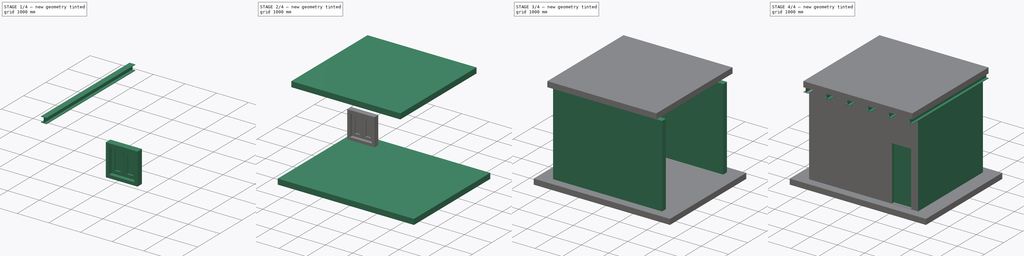
[diagram: build sequence overview — one tinted view per stage of 4, left to right]
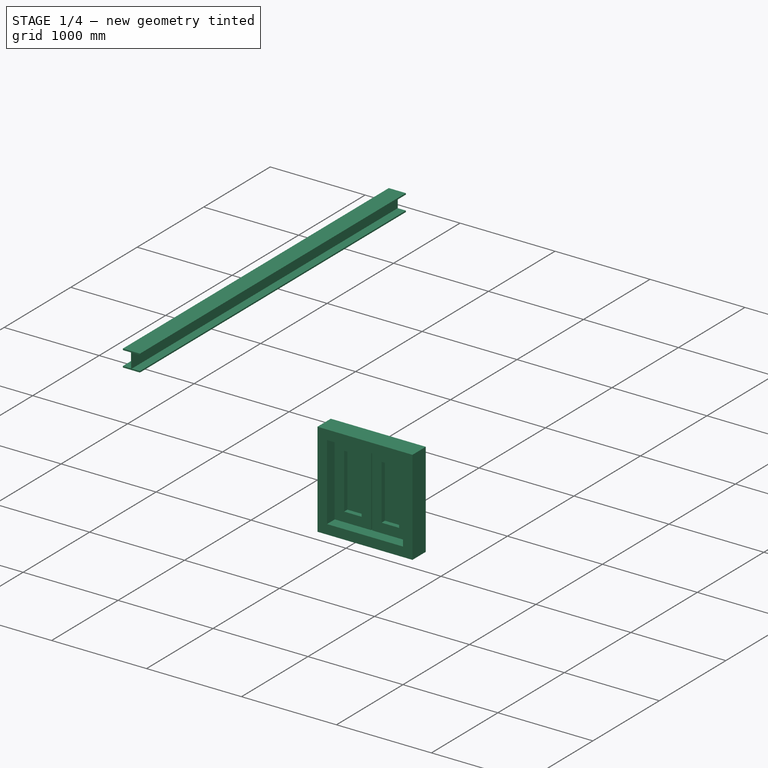
[diagram: stage 1 of 4 — iso view after this stage's code; geometry added in this stage tinted green]
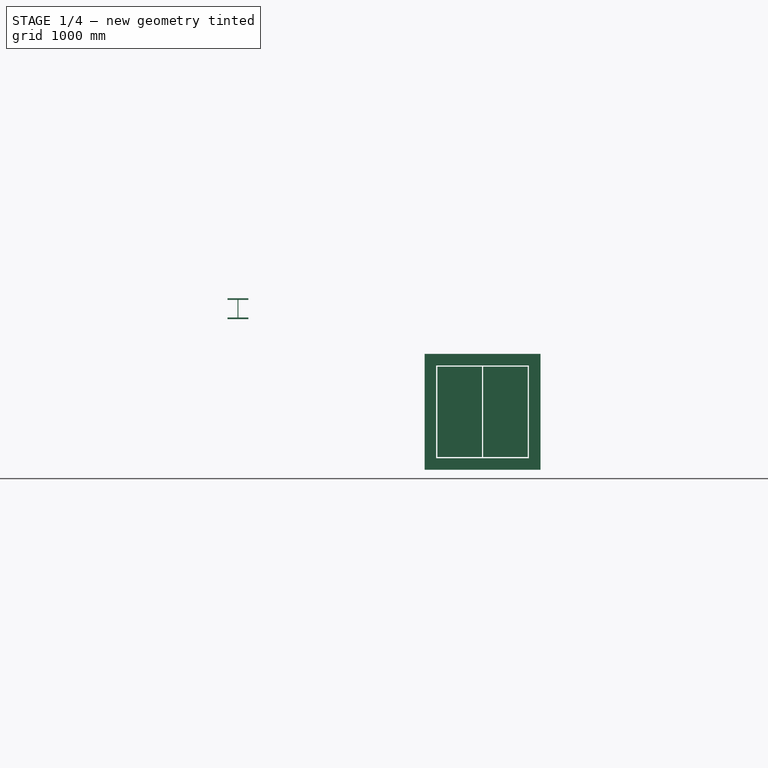
[diagram: stage 1 of 4 — front view after this stage's code; geometry added in this stage tinted green]
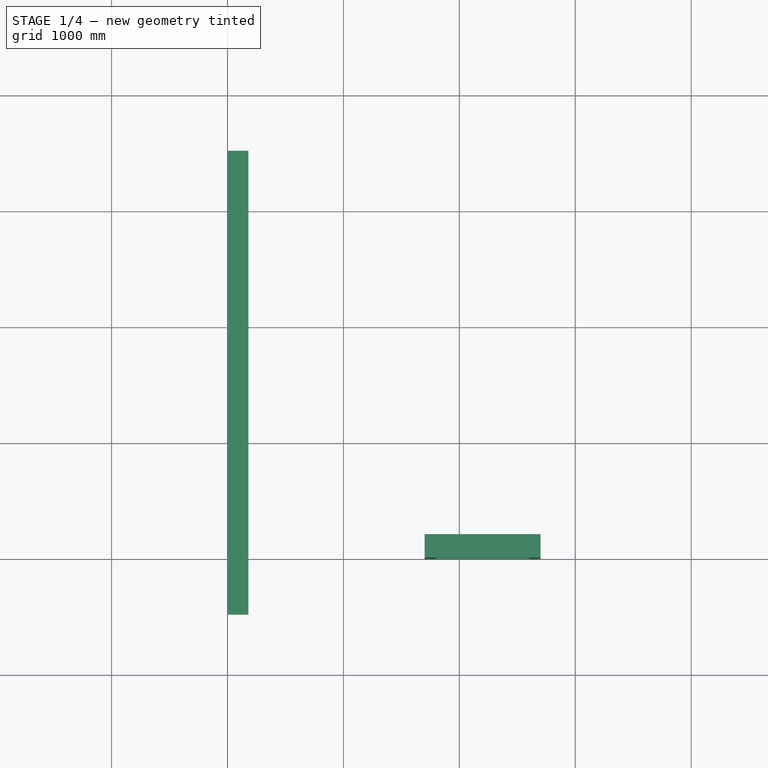
[diagram: stage 1 of 4 — top view after this stage's code; geometry added in this stage tinted green]
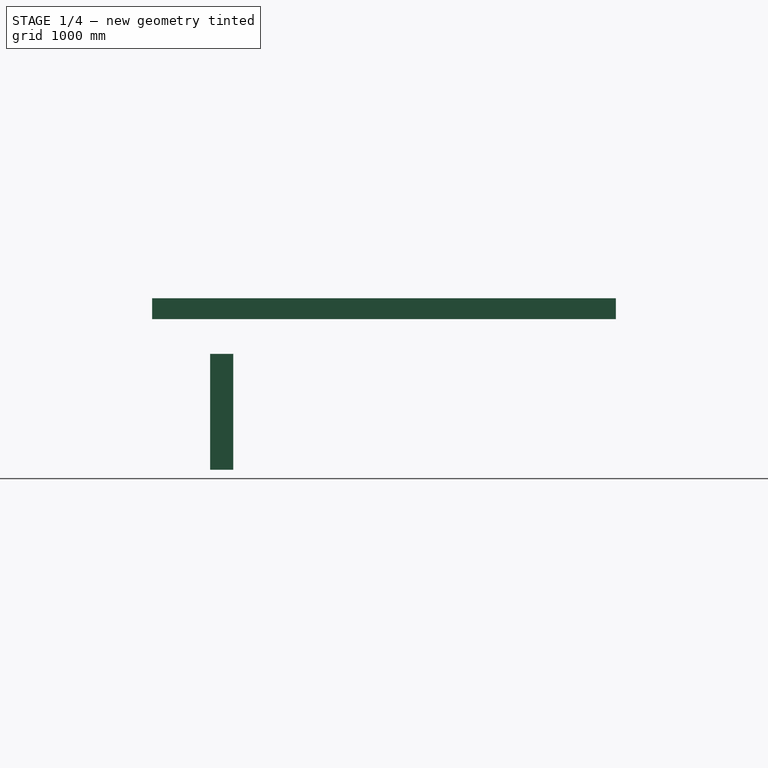
[diagram: stage 1 of 4 — right view after this stage's code; geometry added in this stage tinted green]
FCSTD DOCUMENT  (FreeCAD 0.20R29177 (Git))
Label: building plane
License: All rights reserved
LicenseURL: http://en.wikipedia.org/wiki/All_rights_reserved
objects: Part::FeaturePython×11, Part::Part2DObjectPython×7, Sketcher::SketchObject×5, Part::MultiFuse×1, App::Part×1
note: 24 computed .brp shape members not serialized (recipe doc carries the construction recipe); baked Part::Feature solids carry a one-line shape summary decoded from their .brp

FEATURE [Part::Part2DObjectPython] HEB180  # Draft 2D object (typed FeaturePython)
  FlangeThickness = 14
  Height = 180
  WebThickness = 8.5
  Width = 180
FEATURE [Part::FeaturePython] Structure001  # Arch/BIM 24 (typed FeaturePython)
  Base = -> HEB180
  BaseMirror = false
  BaseOffsetX = 0
  BaseOffsetY = 0
  BasePerpendicularToTool = false
  BaseRotation = 0
  ComputedLength = 0
  FaceMaker = 0
  Height = 4000
  HorizontalArea = 1406000
  IfcType = 24
  Length = 0
  MoveBase = false
  MoveWithHost = false
  Nodes = (2) [(0,6.82265e-16,0),(0,6.82265e-16,4000)]
  NodesOffset = 0
  Normal = (0,0,0)
  PerimeterLength = 1063
  Placement = pos=(90,3500,3090) rot=(1,0,0;1.5708rad)
  PredefinedType = 0
  Profile = HEB180
  ToolOffsetFirst = 0
  ToolOffsetLast = 0
  VerticalArea = 1452664
  Width = 100
FEATURE [Sketcher::SketchObject] Sketch002
  FullyConstrained = true
  Placement = pos=(1000,1000,0) rot=(1,0,0;1.5708rad)
  sketch-geometry (24):
    g0: LineSegment StartX=0 StartY=0 StartZ=0 EndX=998 EndY=0 EndZ=0
    g1: LineSegment StartX=998 StartY=0 StartZ=0 EndX=998 EndY=1000 EndZ=0
    g2: LineSegment StartX=998 StartY=1000 StartZ=0 EndX=0 EndY=1000 EndZ=0
    g3: LineSegment StartX=0 StartY=1000 StartZ=0 EndX=0 EndY=0 EndZ=0
    g4: LineSegment StartX=97 StartY=97 StartZ=0 EndX=901 EndY=97 EndZ=0
    g5: LineSegment StartX=901 StartY=97 StartZ=0 EndX=901 EndY=903 EndZ=0
    g6: LineSegment StartX=901 StartY=903 StartZ=0 EndX=97 EndY=903 EndZ=0
    g7: LineSegment StartX=97 StartY=903 StartZ=0 EndX=97 EndY=97 EndZ=0
    g8: LineSegment StartX=106.7 StartY=106.7 StartZ=0 EndX=494.15 EndY=106.7 EndZ=0
    g9: LineSegment StartX=494.15 StartY=106.7 StartZ=0 EndX=494.15 EndY=893.3 EndZ=0
    g10: LineSegment StartX=494.15 StartY=893.3 StartZ=0 EndX=106.7 EndY=893.3 EndZ=0
    g11: LineSegment StartX=106.7 StartY=893.3 StartZ=0 EndX=106.7 EndY=106.7 EndZ=0
    g12: LineSegment StartX=206.7 StartY=206.7 StartZ=0 EndX=394.15 EndY=206.7 EndZ=0
    g13: LineSegment StartX=394.15 StartY=206.7 StartZ=0 EndX=394.15 EndY=793.3 EndZ=0
    g14: LineSegment StartX=394.15 StartY=793.3 StartZ=0 EndX=206.7 EndY=793.3 EndZ=0
    g15: LineSegment StartX=206.7 StartY=793.3 StartZ=0 EndX=206.7 EndY=206.7 EndZ=0
    g16: LineSegment StartX=503.85 StartY=106.7 StartZ=0 EndX=891.3 EndY=106.7 EndZ=0
    g17: LineSegment StartX=891.3 StartY=106.7 StartZ=0 EndX=891.3 EndY=893.3 EndZ=0
    g18: LineSegment StartX=891.3 StartY=893.3 StartZ=0 EndX=503.85 EndY=893.3 EndZ=0
    g19: LineSegment StartX=503.85 StartY=893.3 StartZ=0 EndX=503.85 EndY=106.7 EndZ=0
    g20: LineSegment StartX=603.85 StartY=206.7 StartZ=0 EndX=791.3 EndY=206.7 EndZ=0
    g21: LineSegment StartX=791.3 StartY=206.7 StartZ=0 EndX=791.3 EndY=793.3 EndZ=0
    g22: LineSegment StartX=791.3 StartY=793.3 StartZ=0 EndX=603.85 EndY=793.3 EndZ=0
    g23: LineSegment StartX=603.85 StartY=793.3 StartZ=0 EndX=603.85 EndY=206.7 EndZ=0
  constraints (71):
    c: Coincident(g0,g1)
    c: Coincident(g1,g2)
    c: Coincident(g2,g3)
    c: Coincident(g3,g0)
    c: Horizontal(g0)
    c: Horizontal(g2)
    c: Vertical(g1)
    c: Vertical(g3)
    c: Coincident(g4,g5)
    c: Coincident(g5,g6)
    c: Coincident(g6,g7)
    c: Coincident(g7,g4)
    c: Horizontal(g4)
    c: Horizontal(g6)
    c: Vertical(g5)
    c: Vertical(g7)
    c: DistanceY(g1) = 1000  'Height'
    c: DistanceX(g0) = 998  'Width'
    c: DistanceY(g6,g2) = 97  'Frame1'
    c: DistanceX(g2,g6) = 97  'Frame2'
    c: DistanceX(g4,g0) = 97  'Frame3'
    c: DistanceY(g0,g4) = 97  'Frame4'
    c: Coincident(g0,g-1)
    c: Coincident(g8,g9)
    c: Coincident(g9,g10)
    c: Coincident(g10,g11)
    c: Coincident(g11,g8)
    c: Horizontal(g8)
    c: Horizontal(g10)
    c: Vertical(g9)
    c: Vertical(g11)
    c: Coincident(g12,g13)
    c: Coincident(g13,g14)
    c: Coincident(g14,g15)
    c: Coincident(g15,g12)
    c: Horizontal(g12)
    c: Horizontal(g14)
    c: Vertical(g13)
    c: Vertical(g15)
    c: Coincident(g16,g17)
    c: Coincident(g17,g18)
    c: Coincident(g18,g19)
    c: Coincident(g19,g16)
    c: Horizontal(g16)
    c: Horizontal(g18)
    c: Vertical(g17)
    c: Vertical(g19)
    c: Coincident(g20,g21)
    c: Coincident(g21,g22)
    c: Coincident(g22,g23)
    c: Coincident(g23,g20)
    c: Horizontal(g20)
    c: Horizontal(g22)
    c: Vertical(g21)
    c: Vertical(g23)
    c: DistanceY(g8,g12) = 100
    c: DistanceX(g8,g12) = 100
    c: DistanceX(g21,g17) = 100
    c: DistanceY(g21,g17) = 100
    c: DistanceX(g16,g20) = 100
    c: DistanceX(g14,g10) = 100
    c: Equal(g22,g14)
    c: DistanceY(g8,g16) = 0
    c: DistanceY(g10,g18) = 0
    c: DistanceX(g4,g8) = 9.7
    c: DistanceY(g4,g8) = 9.7
    c: DistanceX(g6,g18) = -9.7
    c: DistanceY(g6,g18) = -9.7
    c: DistanceX(g9,g19) = 9.7
    c: PointOnObject(g13,g22)
    c: PointOnObject(g20,g12)
FEATURE [Sketcher::SketchObject] Sketch003
  FullyConstrained = true
  Placement = pos=(1000,1000,0) rot=(1,0,0;1.5708rad)
  sketch-geometry (24):
    g0: LineSegment StartX=0 StartY=0 StartZ=0 EndX=1000 EndY=0 EndZ=0
    g1: LineSegment StartX=1000 StartY=0 StartZ=0 EndX=1000 EndY=1000 EndZ=0
    g2: LineSegment StartX=1000 StartY=1000 StartZ=0 EndX=0 EndY=1000 EndZ=0
    g3: LineSegment StartX=0 StartY=1000 StartZ=0 EndX=0 EndY=0 EndZ=0
    g4: LineSegment StartX=100 StartY=100 StartZ=0 EndX=900 EndY=100 EndZ=0
    g5: LineSegment StartX=900 StartY=100 StartZ=0 EndX=900 EndY=900 EndZ=0
    g6: LineSegment StartX=900 StartY=900 StartZ=0 EndX=100 EndY=900 EndZ=0
    g7: LineSegment StartX=100 StartY=900 StartZ=0 EndX=100 EndY=100 EndZ=0
    g8: LineSegment StartX=110 StartY=110 StartZ=0 EndX=495 EndY=110 EndZ=0
    g9: LineSegment StartX=495 StartY=110 StartZ=0 EndX=495 EndY=890 EndZ=0
    g10: LineSegment StartX=495 StartY=890 StartZ=0 EndX=110 EndY=890 EndZ=0
    g11: LineSegment StartX=110 StartY=890 StartZ=0 EndX=110 EndY=110 EndZ=0
    g12: LineSegment StartX=210 StartY=210 StartZ=0 EndX=395 EndY=210 EndZ=0
    g13: LineSegment StartX=395 StartY=210 StartZ=0 EndX=395 EndY=790 EndZ=0
    g14: LineSegment StartX=395 StartY=790 StartZ=0 EndX=210 EndY=790 EndZ=0
    g15: LineSegment StartX=210 StartY=790 StartZ=0 EndX=210 EndY=210 EndZ=0
    g16: LineSegment StartX=505 StartY=110 StartZ=0 EndX=890 EndY=110 EndZ=0
    g17: LineSegment StartX=890 StartY=110 StartZ=0 EndX=890 EndY=890 EndZ=0
    g18: LineSegment StartX=890 StartY=890 StartZ=0 EndX=505 EndY=890 EndZ=0
    g19: LineSegment StartX=505 StartY=890 StartZ=0 EndX=505 EndY=110 EndZ=0
    g20: LineSegment StartX=605 StartY=210 StartZ=0 EndX=790 EndY=210 EndZ=0
    g21: LineSegment StartX=790 StartY=210 StartZ=0 EndX=790 EndY=790 EndZ=0
    g22: LineSegment StartX=790 StartY=790 StartZ=0 EndX=605 EndY=790 EndZ=0
    g23: LineSegment StartX=605 StartY=790 StartZ=0 EndX=605 EndY=210 EndZ=0
  constraints (71):
    c: Coincident(g0,g1)
    c: Coincident(g1,g2)
    c: Coincident(g2,g3)
    c: Coincident(g3,g0)
    c: Horizontal(g0)
    c: Horizontal(g2)
    c: Vertical(g1)
    c: Vertical(g3)
    c: Coincident(g4,g5)
    c: Coincident(g5,g6)
    c: Coincident(g6,g7)
    c: Coincident(g7,g4)
    c: Horizontal(g4)
    c: Horizontal(g6)
    c: Vertical(g5)
    c: Vertical(g7)
    c: DistanceY(g1) = 1000  'Height'
    c: DistanceX(g0) = 1000  'Width'
    c: DistanceY(g6,g2) = 100  'Frame1'
    c: DistanceX(g2,g6) = 100  'Frame2'
    c: DistanceX(g4,g0) = 100  'Frame3'
    c: DistanceY(g0,g4) = 100  'Frame4'
    c: Coincident(g0,g-1)
    c: Coincident(g8,g9)
    c: Coincident(g9,g10)
    c: Coincident(g10,g11)
    c: Coincident(g11,g8)
    c: Horizontal(g8)
    c: Horizontal(g10)
    c: Vertical(g9)
    c: Vertical(g11)
    c: Coincident(g12,g13)
    c: Coincident(g13,g14)
    c: Coincident(g14,g15)
    c: Coincident(g15,g12)
    c: Horizontal(g12)
    c: Horizontal(g14)
    c: Vertical(g13)
    c: Vertical(g15)
    c: Coincident(g16,g17)
    c: Coincident(g17,g18)
    c: Coincident(g18,g19)
    c: Coincident(g19,g16)
    c: Horizontal(g16)
    c: Horizontal(g18)
    c: Vertical(g17)
    c: Vertical(g19)
    c: Coincident(g20,g21)
    c: Coincident(g21,g22)
    c: Coincident(g22,g23)
    c: Coincident(g23,g20)
    c: Horizontal(g20)
    c: Horizontal(g22)
    c: Vertical(g21)
    c: Vertical(g23)
    c: DistanceY(g8,g12) = 100  'Frame5'
    c: DistanceX(g8,g12) = 100  'Frame6'
    c: DistanceX(g21,g17) = 100  'Frame7'
    c: DistanceY(g21,g17) = 100  'Frame8'
    c: DistanceX(g16,g20) = 100  'Frame9'
    c: DistanceX(g14,g10) = 100  'Frame10'
    c: Equal(g22,g14)
    c: DistanceY(g8,g16) = 0
    c: DistanceY(g10,g18) = 0
    c: DistanceX(g4,g8) = 10
    c: DistanceY(g4,g8) = 10
    c: DistanceX(g6,g18) = -10
    c: DistanceY(g6,g18) = -10
    c: DistanceX(g9,g19) = 10
    c: PointOnObject(g13,g22)
    c: PointOnObject(g20,g12)
FEATURE [Sketcher::SketchObject] Sketch004
  FullyConstrained = true
  Placement = pos=(1100,0,600) rot=(1,0,0;1.5708rad)
  sketch-geometry (24):
    g0: LineSegment StartX=0 StartY=0 StartZ=0 EndX=1000 EndY=0 EndZ=0
    g1: LineSegment StartX=1000 StartY=0 StartZ=0 EndX=1000 EndY=1000 EndZ=0
    g2: LineSegment StartX=1000 StartY=1000 StartZ=0 EndX=0 EndY=1000 EndZ=0
    g3: LineSegment StartX=0 StartY=1000 StartZ=0 EndX=0 EndY=0 EndZ=0
    g4: LineSegment StartX=100 StartY=100 StartZ=0 EndX=900 EndY=100 EndZ=0
    g5: LineSegment StartX=900 StartY=100 StartZ=0 EndX=900 EndY=900 EndZ=0
    g6: LineSegment StartX=900 StartY=900 StartZ=0 EndX=100 EndY=900 EndZ=0
    g7: LineSegment StartX=100 StartY=900 StartZ=0 EndX=100 EndY=100 EndZ=0
    g8: LineSegment StartX=110 StartY=110 StartZ=0 EndX=495 EndY=110 EndZ=0
    g9: LineSegment StartX=495 StartY=110 StartZ=0 EndX=495 EndY=890 EndZ=0
    g10: LineSegment StartX=495 StartY=890 StartZ=0 EndX=110 EndY=890 EndZ=0
    g11: LineSegment StartX=110 StartY=890 StartZ=0 EndX=110 EndY=110 EndZ=0
    g12: LineSegment StartX=210 StartY=210 StartZ=0 EndX=395 EndY=210 EndZ=0
    g13: LineSegment StartX=395 StartY=210 StartZ=0 EndX=395 EndY=790 EndZ=0
    g14: LineSegment StartX=395 StartY=790 StartZ=0 EndX=210 EndY=790 EndZ=0
    g15: LineSegment StartX=210 StartY=790 StartZ=0 EndX=210 EndY=210 EndZ=0
    g16: LineSegment StartX=505 StartY=110 StartZ=0 EndX=890 EndY=110 EndZ=0
    g17: LineSegment StartX=890 StartY=110 StartZ=0 EndX=890 EndY=890 EndZ=0
    g18: LineSegment StartX=890 StartY=890 StartZ=0 EndX=505 EndY=890 EndZ=0
    g19: LineSegment StartX=505 StartY=890 StartZ=0 EndX=505 EndY=110 EndZ=0
    g20: LineSegment StartX=605 StartY=210 StartZ=0 EndX=790 EndY=210 EndZ=0
    g21: LineSegment StartX=790 StartY=210 StartZ=0 EndX=790 EndY=790 EndZ=0
    g22: LineSegment StartX=790 StartY=790 StartZ=0 EndX=605 EndY=790 EndZ=0
    g23: LineSegment StartX=605 StartY=790 StartZ=0 EndX=605 EndY=210 EndZ=0
  constraints (71):
    c: Coincident(g0,g1)
    c: Coincident(g1,g2)
    c: Coincident(g2,g3)
    c: Coincident(g3,g0)
    c: Horizontal(g0)
    c: Horizontal(g2)
    c: Vertical(g1)
    c: Vertical(g3)
    c: Coincident(g4,g5)
    c: Coincident(g5,g6)
    c: Coincident(g6,g7)
    c: Coincident(g7,g4)
    c: Horizontal(g4)
    c: Horizontal(g6)
    c: Vertical(g5)
    c: Vertical(g7)
    c: DistanceY(g1) = 1000  'Height'
    c: DistanceX(g0) = 1000  'Width'
    c: DistanceY(g6,g2) = 100  'Frame1'
    c: DistanceX(g2,g6) = 100  'Frame2'
    c: DistanceX(g4,g0) = 100  'Frame3'
    c: DistanceY(g0,g4) = 100  'Frame4'
    c: Coincident(g0,g-1)
    c: Coincident(g8,g9)
    c: Coincident(g9,g10)
    c: Coincident(g10,g11)
    c: Coincident(g11,g8)
    c: Horizontal(g8)
    c: Horizontal(g10)
    c: Vertical(g9)
    c: Vertical(g11)
    c: Coincident(g12,g13)
    c: Coincident(g13,g14)
    c: Coincident(g14,g15)
    c: Coincident(g15,g12)
    c: Horizontal(g12)
    c: Horizontal(g14)
    c: Vertical(g13)
    c: Vertical(g15)
    c: Coincident(g16,g17)
    c: Coincident(g17,g18)
    c: Coincident(g18,g19)
    c: Coincident(g19,g16)
    c: Horizontal(g16)
    c: Horizontal(g18)
    c: Vertical(g17)
    c: Vertical(g19)
    c: Coincident(g20,g21)
    c: Coincident(g21,g22)
    c: Coincident(g22,g23)
    c: Coincident(g23,g20)
    c: Horizontal(g20)
    c: Horizontal(g22)
    c: Vertical(g21)
    c: Vertical(g23)
    c: DistanceY(g8,g12) = 100  'Frame5'
    c: DistanceX(g8,g12) = 100  'Frame6'
    c: DistanceX(g21,g17) = 100  'Frame7'
    c: DistanceY(g21,g17) = 100  'Frame8'
    c: DistanceX(g16,g20) = 100  'Frame9'
    c: DistanceX(g14,g10) = 100  'Frame10'
    c: Equal(g22,g14)
    c: DistanceY(g8,g16) = 0
    c: DistanceY(g10,g18) = 0
    c: DistanceX(g4,g8) = 10
    c: DistanceY(g4,g8) = 10
    c: DistanceX(g6,g18) = -10
    c: DistanceY(g6,g18) = -10
    c: DistanceX(g9,g19) = 10
    c: PointOnObject(g13,g22)
    c: PointOnObject(g20,g12)
FEATURE [Part::FeaturePython] Window001  label="Window"  # Arch/BIM 170 (typed FeaturePython)
  Area = 1000000
  Base = -> Sketch004
  Frame = 100
  Height = 1000
  HoleDepth = 0
  HoleWire = 0
  HorizontalArea = 0
  IfcData = attributes={"GlobalId": {"name": "GlobalId", "type": "IfcGloballyUniqueId", "is_enum": false, "enum_values": []}, "Description": {"... (+1231 chars omitted),+1 more (map truncated)
  IfcType = 170
  LouvreSpacing = 0
  LouvreWidth = 0
  MoveBase = false
  MoveWithHost = true
  Normal = (0,1,-2e-16)
  Opening = 0
  OverallHeight = 1000
  OverallWidth = 1000
  PartitioningType = 0
  PerimeterLength = 0
  Placement = pos=(600,0,1100) rot=(0,0,1;0rad)
  PredefinedType = 0
  Preset = 3
  SymbolElevation = false
  SymbolPlan = false
  VerticalArea = 0
  Width = 1000
  WindowParts = OuterFrame | Frame | Wire0,Wire1 | 100.0+V | 0.00+V | LeftFrame | Frame | Wire2,Wire3,Edge8,Mode1 | 100.0 | 100.0+V | LeftGlass | Glass panel | Wire3 | 10.0 | 150.0+V | RightFrame | Frame | Wire4,Wire5,Edge6,Mode2 | 100.0 | 100.0+V | RightGlass | Glass panel | Wire5 | 10.0 | 150.0+V
  expr: OverallHeight = .Height.Value
  expr: OverallWidth = .Width.Value
FEATURE [Part::FeaturePython] Window002  # Arch/BIM 170 (typed FeaturePython)
  Area = 1000000
  CloneOf = -> Window001
  Frame = 0
  Height = 1000
  HoleDepth = 0
  HoleWire = 0
  HorizontalArea = 0
  IfcData = attributes={"GlobalId": {"name": "GlobalId", "type": "IfcGloballyUniqueId", "is_enum": false, "enum_values": []}, "Description": {"... (+1225 chars omitted),+1 more (map truncated)
  IfcType = 170
  LouvreSpacing = 0
  LouvreWidth = 0
  MoveBase = false
  MoveWithHost = true
  Normal = (0,0,0)
  Opening = 0
  OverallHeight = 0
  OverallWidth = 0
  PartitioningType = 0
  PerimeterLength = 0
  Placement = pos=(600,0,1100) rot=(0,0,1;0rad)
  PredefinedType = 0
  Preset = 0
  SymbolElevation = false
  SymbolPlan = false
  VerticalArea = 0
  Width = 1000
  expr: OverallHeight = .Height.Value
  expr: OverallWidth = .Width.Value
FEATURE [App::Part] Part
  Origin = -> Origin
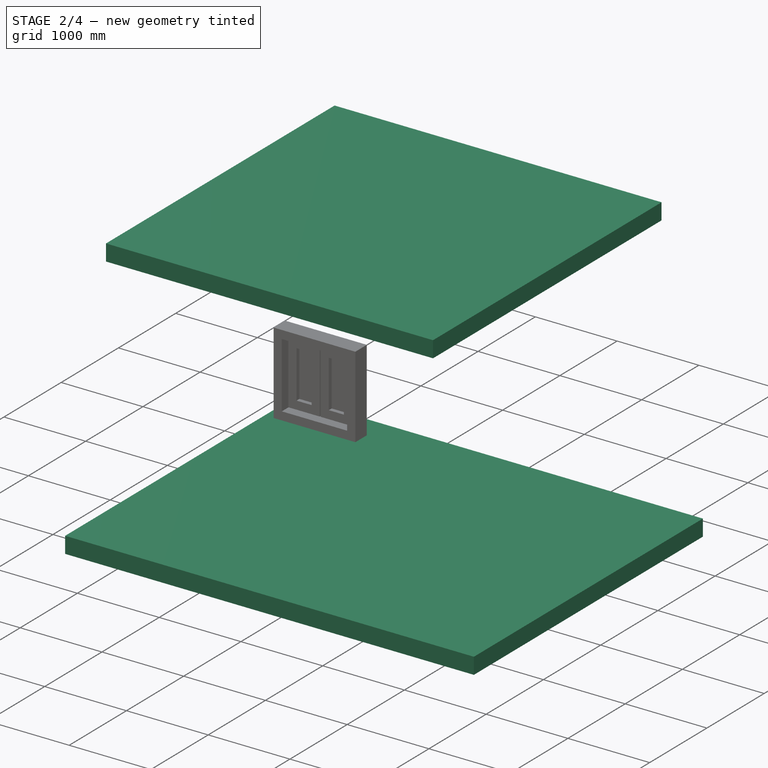
[diagram: stage 2 of 4 — iso view after this stage's code; geometry added in this stage tinted green]
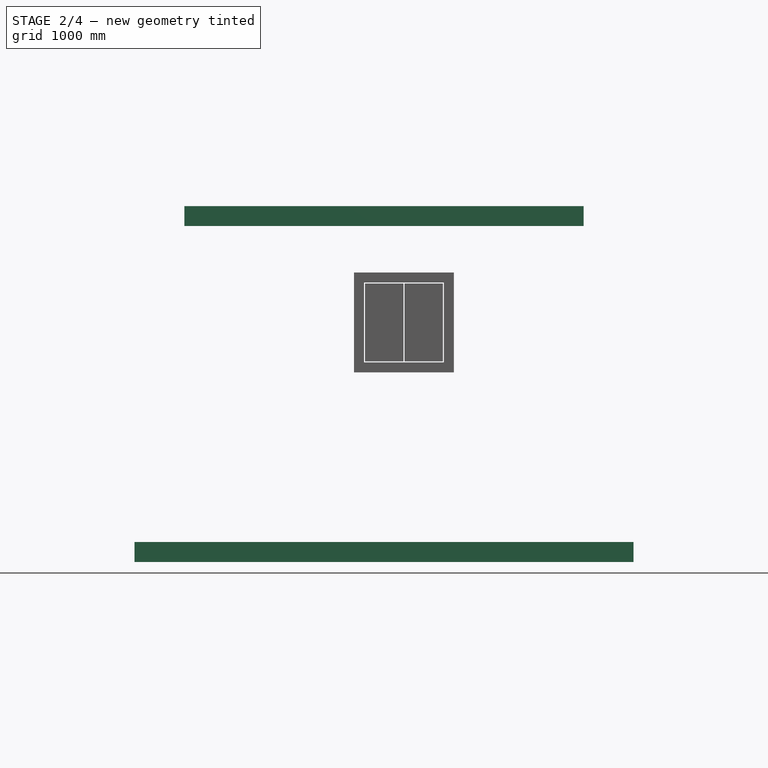
[diagram: stage 2 of 4 — front view after this stage's code; geometry added in this stage tinted green]
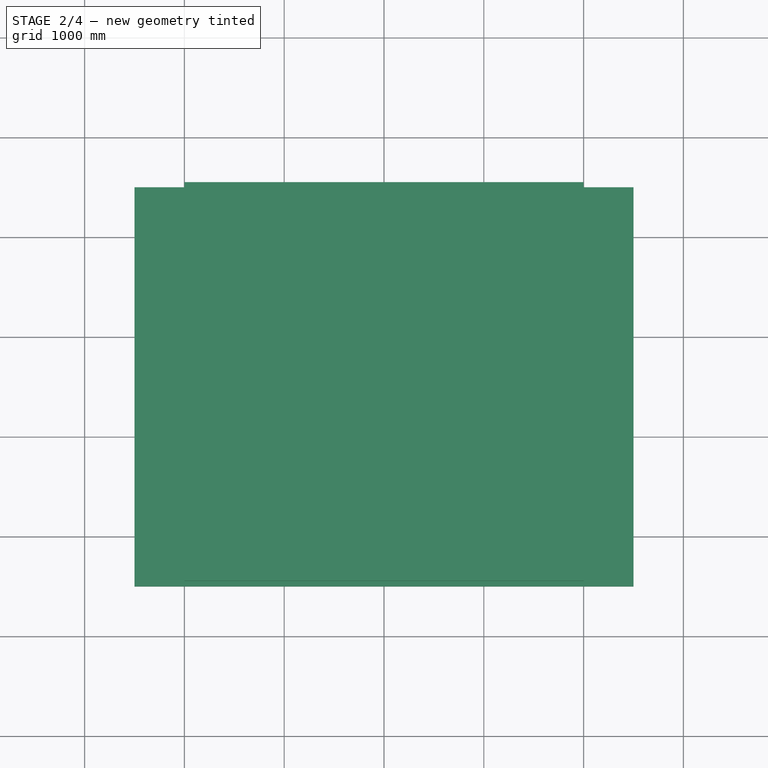
[diagram: stage 2 of 4 — top view after this stage's code; geometry added in this stage tinted green]
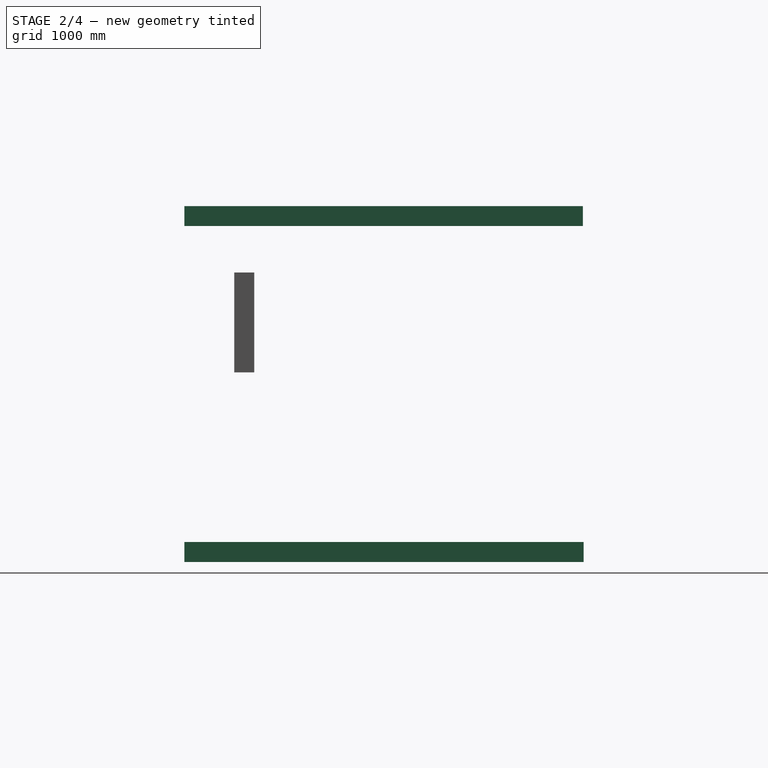
[diagram: stage 2 of 4 — right view after this stage's code; geometry added in this stage tinted green]
FEATURE [Part::Part2DObjectPython] Rectangle  # Draft 2D object (typed FeaturePython)
  ChamferSize = 0
  Columns = 1
  FilletRadius = 0
  Height = 4000
  Length = 5000
  MakeFace = true
  Placement = pos=(-500,-500,0) rot=(0,0,1;0rad)
  Rows = 1
FEATURE [Part::FeaturePython] Structure  # Arch/BIM 172 (typed FeaturePython)
  Base = -> Rectangle
  BaseMirror = false
  BaseOffsetX = 0
  BaseOffsetY = 0
  BasePerpendicularToTool = false
  BaseRotation = 0
  ComputedLength = 0
  FaceMaker = 0
  Height = 200
  HorizontalArea = 20000000
  IfcType = 172
  Length = 0
  MoveBase = false
  MoveWithHost = false
  Nodes = (2) [(2000,1500,0),(2000,1500,-200)]
  NodesOffset = 0
  Normal = (0,0,-1)
  PerimeterLength = 18000
  PredefinedType = 0
  ToolOffsetFirst = 0
  ToolOffsetLast = 0
  VerticalArea = 3600000
  Width = 100
FEATURE [Part::FeaturePython] Array  # Draft array (typed FeaturePython)
  Angle = 360
  ArrayType = 0
  Axis = (0,0,1)
  Base = -> Structure001
  Center = (0,0,0)
  Fuse = false
  IntervalAxis = (0,0,0)
  IntervalX = (764,0,0)
  IntervalY = (0,1,0)
  IntervalZ = (0,0,1)
  NumberPolar = 1
  NumberX = 6
  NumberY = 1
  NumberZ = 1
  expr: .IntervalX.x = (4000 - 180) / 5
FEATURE [Part::Part2DObjectPython] Rectangle001  # Draft 2D object (typed FeaturePython)
  ChamferSize = 0
  Columns = 1
  FilletRadius = 0
  Height = 3992.57
  Length = 4000
  MakeFace = true
  Placement = pos=(4000,3492.57,3166) rot=(0,0,1;3.14159rad)
  Rows = 1
  Support = -> [Array]
FEATURE [Part::FeaturePython] Structure002  # Arch/BIM 172 (typed FeaturePython)
  Base = -> Rectangle001
  BaseMirror = false
  BaseOffsetX = 0
  BaseOffsetY = 0
  BasePerpendicularToTool = false
  BaseRotation = 0
  ComputedLength = 0
  FaceMaker = 0
  Height = 200
  HorizontalArea = 1.59703e+07
  IfcType = 172
  Length = 0
  MoveBase = false
  MoveWithHost = false
  Nodes = (2) [(-2000,-1496.29,3166),(-2000,-1496.29,3366)]
  NodesOffset = 0
  Normal = (0,0,0)
  PerimeterLength = 15985.1
  PredefinedType = 0
  ToolOffsetFirst = 0
  ToolOffsetLast = 0
  VerticalArea = 3.19703e+06
  Width = 100
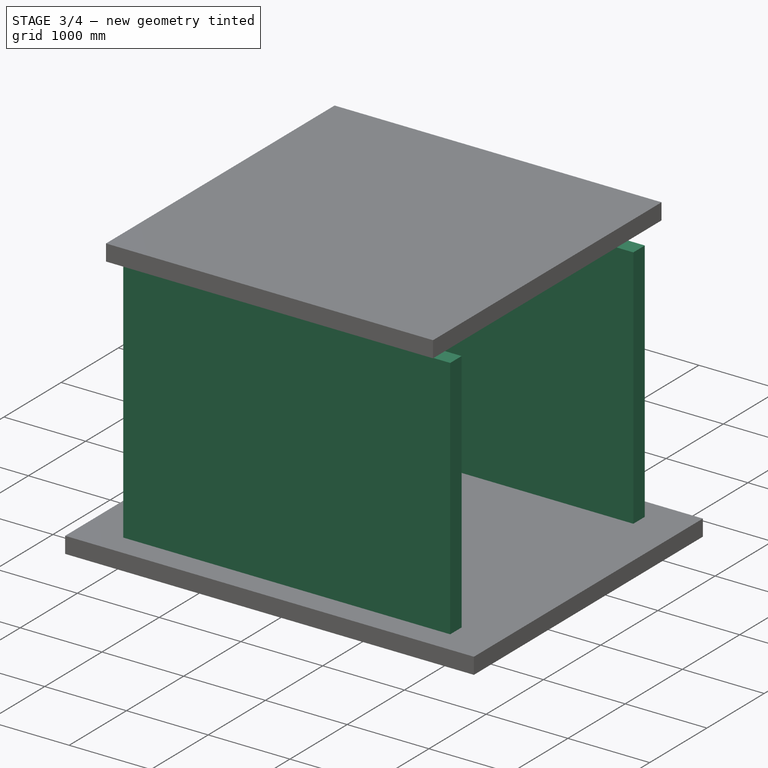
[diagram: stage 3 of 4 — iso view after this stage's code; geometry added in this stage tinted green]
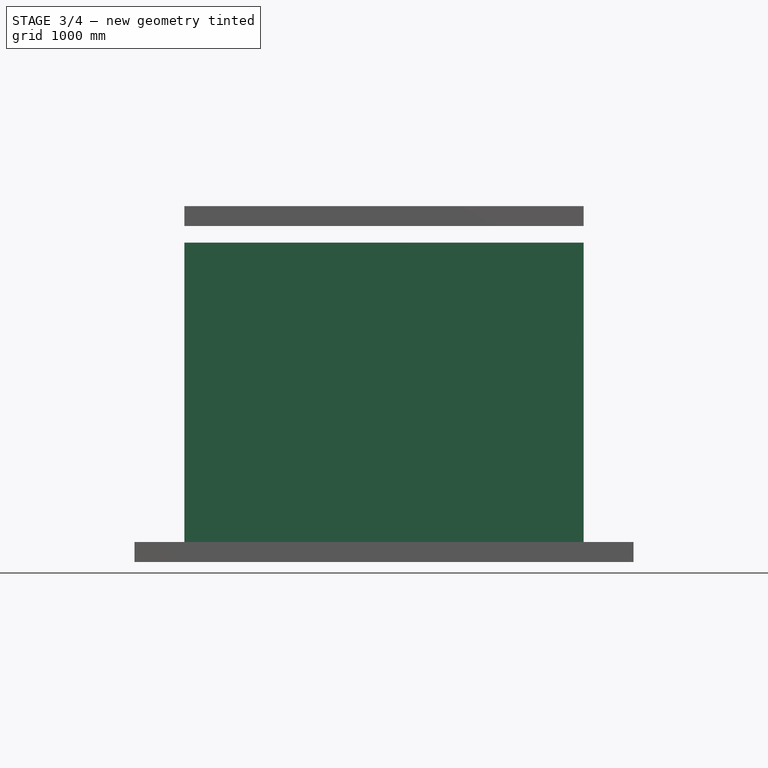
[diagram: stage 3 of 4 — front view after this stage's code; geometry added in this stage tinted green]
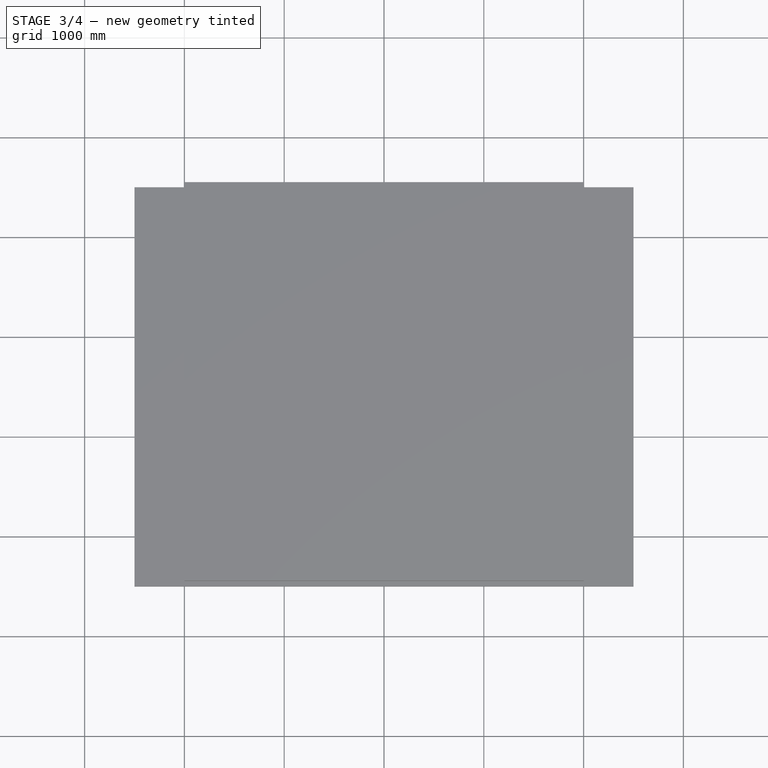
[diagram: stage 3 of 4 — top view after this stage's code; geometry added in this stage tinted green]
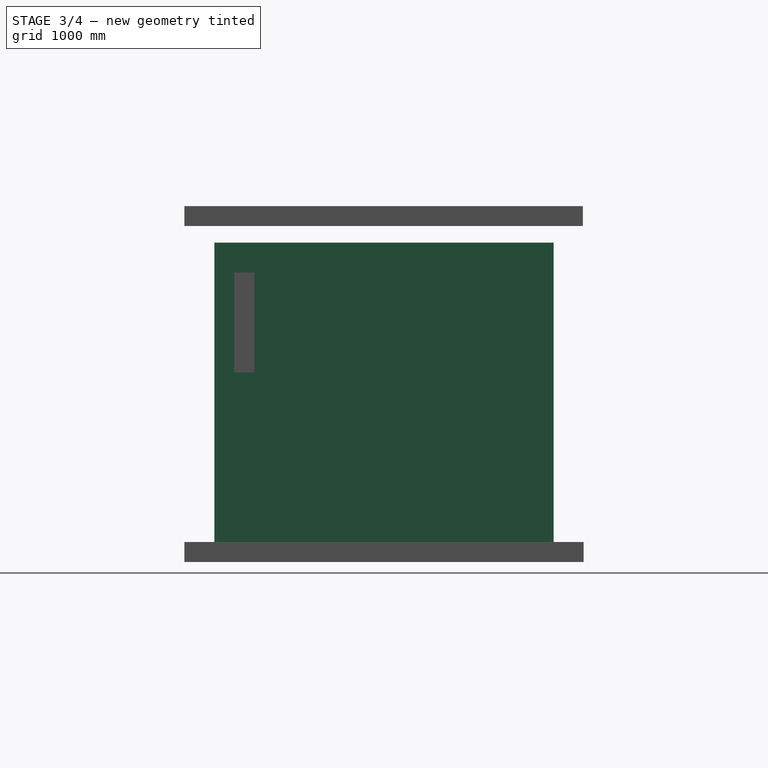
[diagram: stage 3 of 4 — right view after this stage's code; geometry added in this stage tinted green]
FEATURE [Part::Part2DObjectPython] Line  # Draft 2D object (typed FeaturePython)
  ChamferSize = 0
  Closed = false
  End = (0,3000,0)
  FilletRadius = 0
  Length = 3000
  MakeFace = true
  Points = (2) [(0,0,0),(0,3000,0)]
  Start = (0,0,0)
  Subdivisions = 0
FEATURE [Part::Part2DObjectPython] Line001  # Draft 2D object (typed FeaturePython)
  ChamferSize = 0
  Closed = false
  End = (4000,0,0)
  FilletRadius = 0
  Length = 4000
  MakeFace = true
  Points = (2) [(0,0,0),(4000,0,0)]
  Start = (0,0,0)
  Subdivisions = 0
FEATURE [Part::Part2DObjectPython] Line003  # Draft 2D object (typed FeaturePython)
  ChamferSize = 0
  Closed = false
  End = (0,3000,0)
  FilletRadius = 0
  Length = 4000
  MakeFace = true
  Placement = pos=(4000,3000,0) rot=(0,0,1;0rad)
  Points = (2) [(0,0,0),(-4000,0,0)]
  Start = (4000,3000,0)
  Subdivisions = 0
FEATURE [Part::Part2DObjectPython] Line004  # Draft 2D object (typed FeaturePython)
  ChamferSize = 0
  Closed = false
  End = (4000,0,0)
  FilletRadius = 0
  Length = 3000
  MakeFace = true
  Placement = pos=(4000,3000,0) rot=(0,0,1;0rad)
  Points = (2) [(0,0,0),(0,-3000,0)]
  Start = (4000,3000,0)
  Subdivisions = 0
FEATURE [Part::FeaturePython] Wall  # Arch/BIM 166 (typed FeaturePython)
  Align = 0
  Area = 0
  Base = -> Line
  BlockHeight = 0
  BlockLength = 0
  CountBroken = 0
  CountEntire = 0
  Face = 0
  Height = 3000
  HorizontalArea = 600000
  IfcType = 166
  Joint = 0
  Length = 3000
  MakeBlocks = false
  MoveBase = false
  MoveWithHost = false
  Normal = (0,0,0)
  OffsetFirst = 0
  OffsetSecond = 0
  PerimeterLength = 6400
  PredefinedType = 0
  VerticalArea = 19200000
  Width = 200
FEATURE [Part::FeaturePython] Wall001  # Arch/BIM 166 (typed FeaturePython)
  Align = 0
  Area = 0
  Base = -> Line001
  BlockHeight = 0
  BlockLength = 0
  CountBroken = 0
  CountEntire = 0
  Face = 0
  Height = 3000
  HorizontalArea = 800000
  IfcType = 166
  Joint = 0
  Length = 4000
  MakeBlocks = false
  MoveBase = false
  MoveWithHost = false
  Normal = (0,0,0)
  OffsetFirst = 0
  OffsetSecond = 0
  PerimeterLength = 8400
  PredefinedType = 0
  VerticalArea = 2.52e+07
  Width = 200
FEATURE [Part::FeaturePython] Wall002  # Arch/BIM 166 (typed FeaturePython)
  Align = 0
  Area = 0
  Base = -> Line003
  BlockHeight = 0
  BlockLength = 0
  CountBroken = 0
  CountEntire = 0
  Face = 0
  Height = 3000
  HorizontalArea = 800000
  IfcType = 166
  Joint = 0
  Length = 4000
  MakeBlocks = false
  MoveBase = false
  MoveWithHost = false
  Normal = (0,0,0)
  OffsetFirst = 0
  OffsetSecond = 0
  PerimeterLength = 8400
  PredefinedType = 0
  VerticalArea = 2.52e+07
  Width = 200
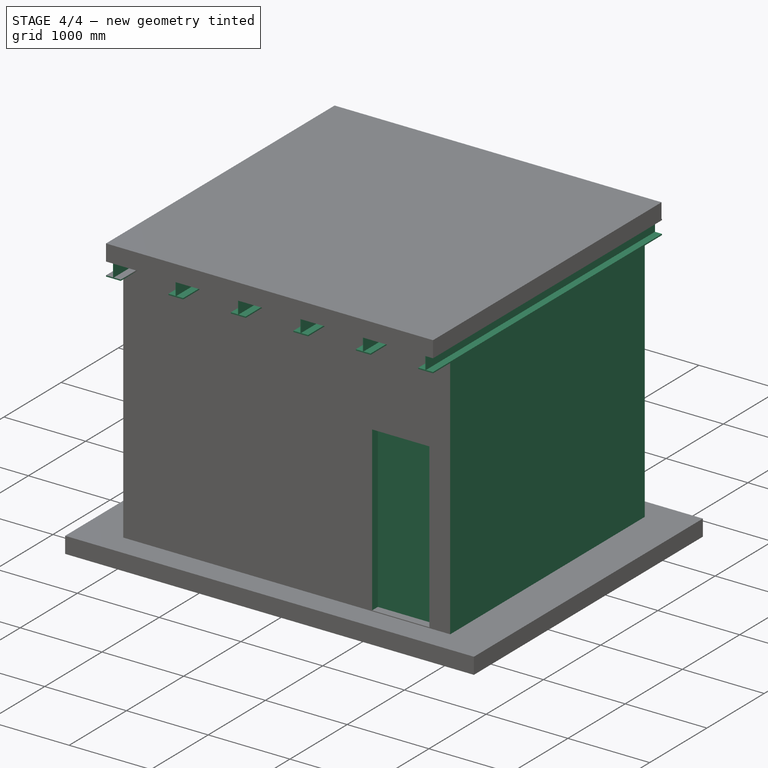
[diagram: stage 4 of 4 — iso view after this stage's code; geometry added in this stage tinted green]
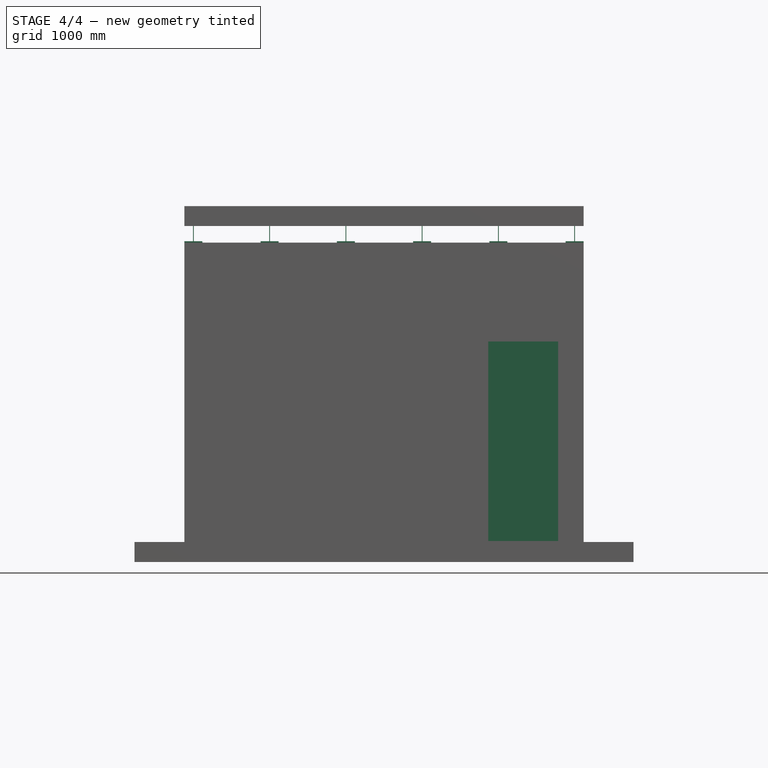
[diagram: stage 4 of 4 — front view after this stage's code; geometry added in this stage tinted green]
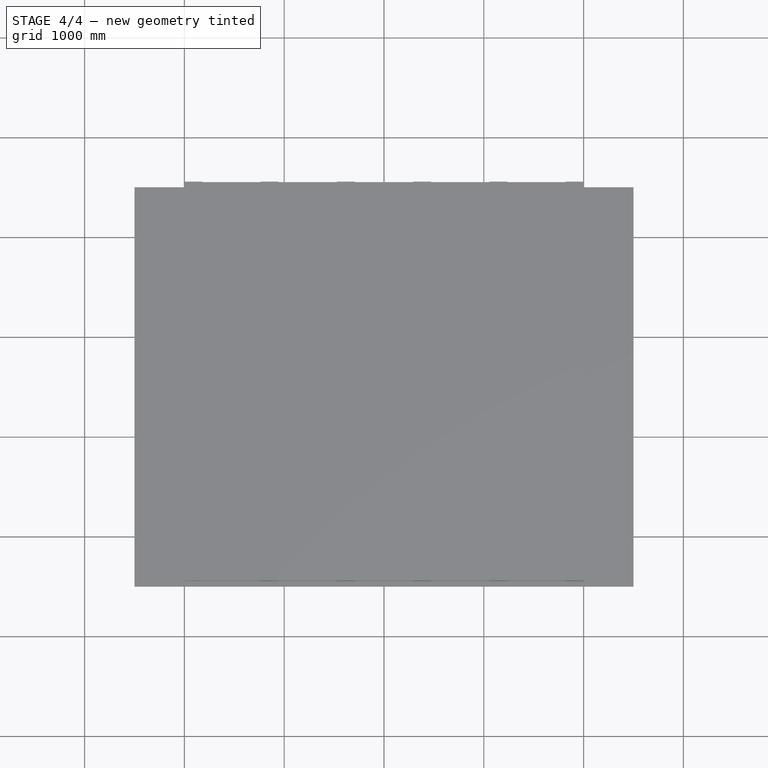
[diagram: stage 4 of 4 — top view after this stage's code; geometry added in this stage tinted green]
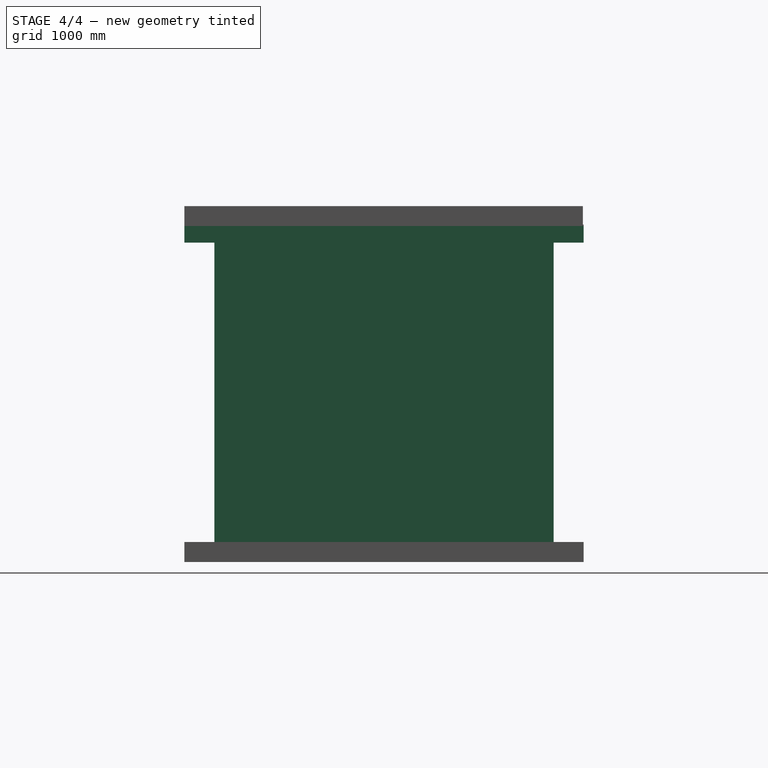
[diagram: stage 4 of 4 — right view after this stage's code; geometry added in this stage tinted green]
FEATURE [Part::FeaturePython] Wall003  # Arch/BIM 166 (typed FeaturePython)
  Additions = -> [Wall,Wall001,Wall002]
  Align = 0
  Area = 0
  Base = -> Line004
  BlockHeight = 0
  BlockLength = 0
  CountBroken = 0
  CountEntire = 0
  Face = 0
  Height = 3000
  HorizontalArea = 3.06525e+06
  IfcType = 166
  Joint = 0
  Length = 3000
  MakeBlocks = false
  MoveBase = false
  MoveWithHost = false
  Normal = (0,0,0)
  OffsetFirst = 0
  OffsetSecond = 0
  PerimeterLength = 14800
  PredefinedType = 0
  VerticalArea = 8.12485e+07
  Width = 200
FEATURE [Sketcher::SketchObject] Sketch
  FullyConstrained = false
  Placement = pos=(2947.86,-500,-1) rot=(1,0,0;1.5708rad)
  sketch-geometry (8):
    g0: LineSegment StartX=0 StartY=0 StartZ=0 EndX=900 EndY=0 EndZ=0
    g1: LineSegment StartX=900 StartY=0 StartZ=0 EndX=900 EndY=2100 EndZ=0
    g2: LineSegment StartX=900 StartY=2100 StartZ=0 EndX=0 EndY=2100 EndZ=0
    g3: LineSegment StartX=0 StartY=2100 StartZ=0 EndX=0 EndY=0 EndZ=0
    g4: LineSegment StartX=100 StartY=0 StartZ=0 EndX=800 EndY=0 EndZ=0
    g5: LineSegment StartX=800 StartY=0 StartZ=0 EndX=800 EndY=2000 EndZ=0
    g6: LineSegment StartX=800 StartY=2000 StartZ=0 EndX=100 EndY=2000 EndZ=0
    g7: LineSegment StartX=100 StartY=2000 StartZ=0 EndX=100 EndY=0 EndZ=0
  constraints (23):
    c: Coincident(g0,g1)
    c: Coincident(g1,g2)
    c: Coincident(g2,g3)
    c: Coincident(g3,g0)
    c: Horizontal(g0)
    c: Horizontal(g2)
    c: Vertical(g1)
    c: Vertical(g3)
    c: Coincident(g4,g5)
    c: Coincident(g5,g6)
    c: Coincident(g6,g7)
    c: Coincident(g7,g4)
    c: Horizontal(g4)
    c: Horizontal(g6)
    c: Vertical(g5)
    c: Vertical(g7)
    c: DistanceY(g1) = 2100  'Height'
    c: DistanceX(g0) = 900  'Width'
    c: DistanceY(g6,g2) = 100  'Frame1'
    c: DistanceX(g2,g6) = 100  'Frame2'
    c: DistanceX(g4,g0) = 100  'Frame3'
    c: DistanceY(g0,g4) = 0
    c: Coincident(g0,g-1)
FEATURE [Sketcher::SketchObject] Sketch001
  FullyConstrained = false
  Placement = pos=(2944.87,-200,9.37976) rot=(1,0,0;1.5708rad)
  sketch-geometry (8):
    g0: LineSegment StartX=0 StartY=0 StartZ=0 EndX=900 EndY=0 EndZ=0
    g1: LineSegment StartX=900 StartY=0 StartZ=0 EndX=900 EndY=2100 EndZ=0
    g2: LineSegment StartX=900 StartY=2100 StartZ=0 EndX=0 EndY=2100 EndZ=0
    g3: LineSegment StartX=0 StartY=2100 StartZ=0 EndX=0 EndY=0 EndZ=0
    g4: LineSegment StartX=100 StartY=0 StartZ=0 EndX=800 EndY=0 EndZ=0
    g5: LineSegment StartX=800 StartY=0 StartZ=0 EndX=800 EndY=2000 EndZ=0
    g6: LineSegment StartX=800 StartY=2000 StartZ=0 EndX=100 EndY=2000 EndZ=0
    g7: LineSegment StartX=100 StartY=2000 StartZ=0 EndX=100 EndY=0 EndZ=0
  constraints (23):
    c: Coincident(g0,g1)
    c: Coincident(g1,g2)
    c: Coincident(g2,g3)
    c: Coincident(g3,g0)
    c: Horizontal(g0)
    c: Horizontal(g2)
    c: Vertical(g1)
    c: Vertical(g3)
    c: Coincident(g4,g5)
    c: Coincident(g5,g6)
    c: Coincident(g6,g7)
    c: Coincident(g7,g4)
    c: Horizontal(g4)
    c: Horizontal(g6)
    c: Vertical(g5)
    c: Vertical(g7)
    c: DistanceY(g1) = 2100  'Height'
    c: DistanceX(g0) = 900  'Width'
    c: DistanceY(g6,g2) = 100  'Frame1'
    c: DistanceX(g2,g6) = 100  'Frame2'
    c: DistanceX(g4,g0) = 100  'Frame3'
    c: DistanceY(g0,g4) = 0
    c: Coincident(g0,g-1)
FEATURE [Part::FeaturePython] Window  label="Door"  # Arch/BIM 41 (typed FeaturePython)
  Area = 1890000
  Base = -> Sketch001
  Frame = 100
  Height = 2100
  HoleDepth = 0
  HoleWire = 0
  HorizontalArea = 0
  Hosts = -> [Wall003]
  IfcType = 41
  LouvreSpacing = 0
  LouvreWidth = 0
  MoveBase = false
  MoveWithHost = true
  Normal = (0,1,-2e-16)
  Opening = 0
  OperationType = 0
  OverallHeight = 0
  OverallWidth = 0
  PerimeterLength = 0
  PredefinedType = 0
  Preset = 6
  SymbolElevation = false
  SymbolPlan = false
  VerticalArea = 0
  Width = 900
  WindowParts = OuterFrame | Frame | Wire0,Wire1 | 100.0+V | 0.00+V | Door | Solid panel | Wire1 | 100.0 | 100.0+V
  expr: OverallHeight = .Height.Value
  expr: OverallWidth = .Width.Value
FEATURE [Part::MultiFuse] Fusion
  Shapes = -> [Wall003,Array,Structure002,Structure]
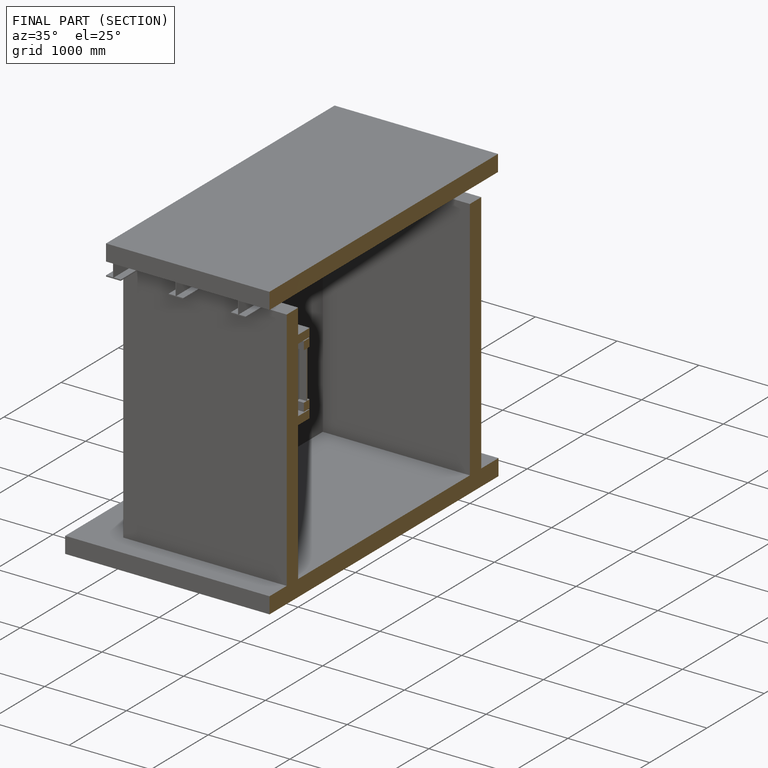
[diagram: finished part — half-section view (interior)]
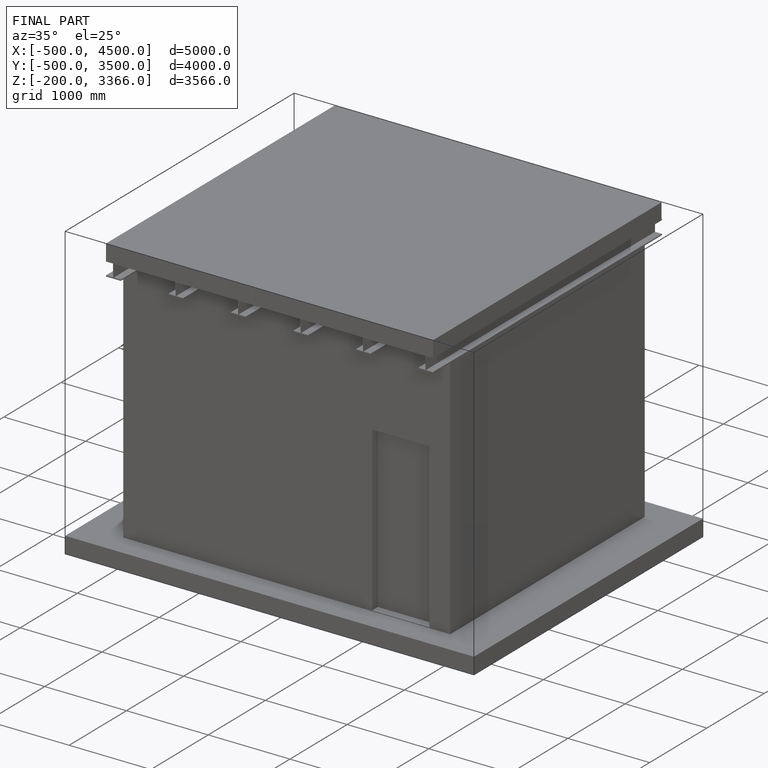
[diagram: finished part — iso view with bounding-box wireframe]
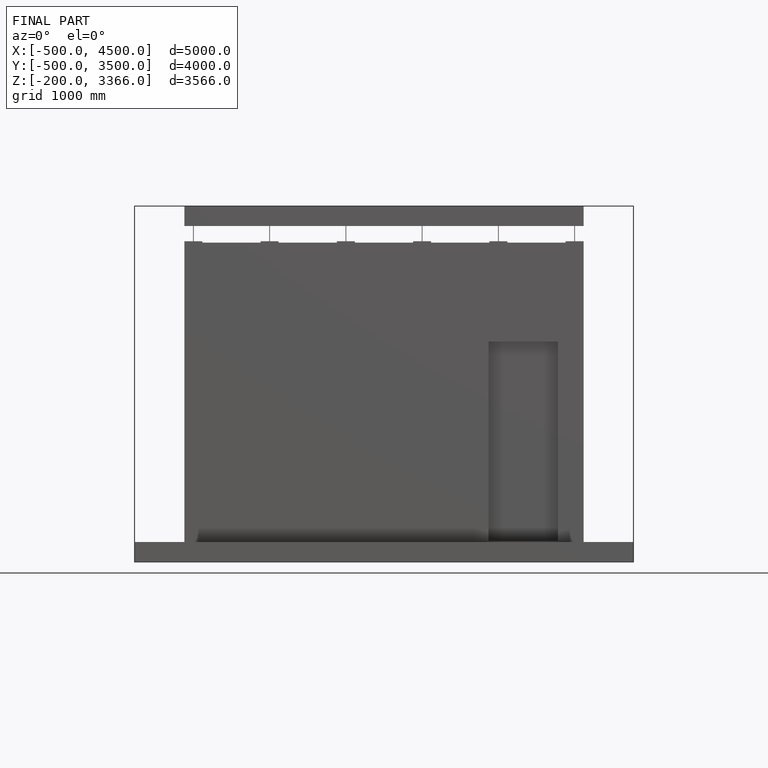
[diagram: finished part — front view with bounding-box wireframe]
